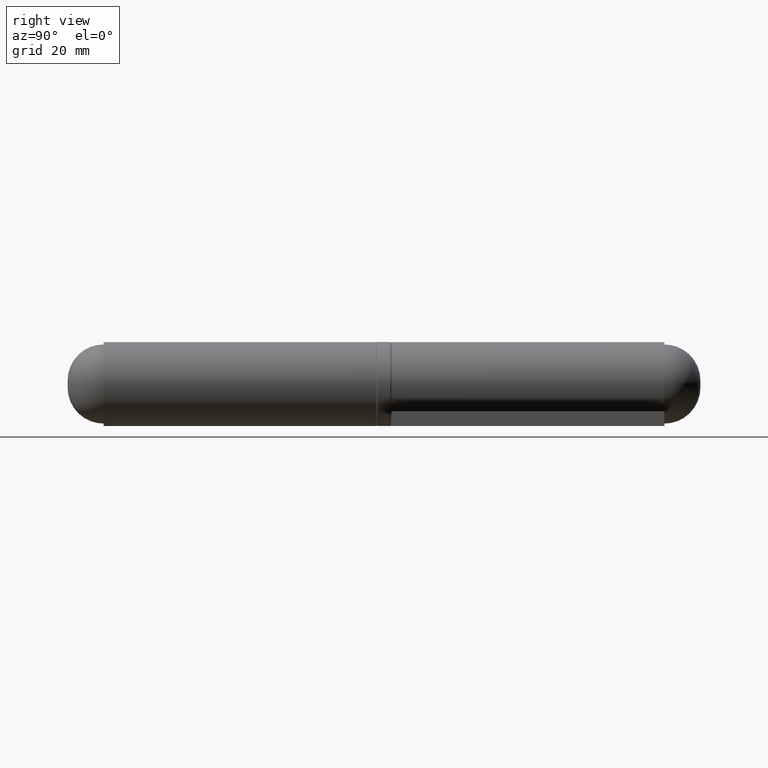
[diagram: clean part render]
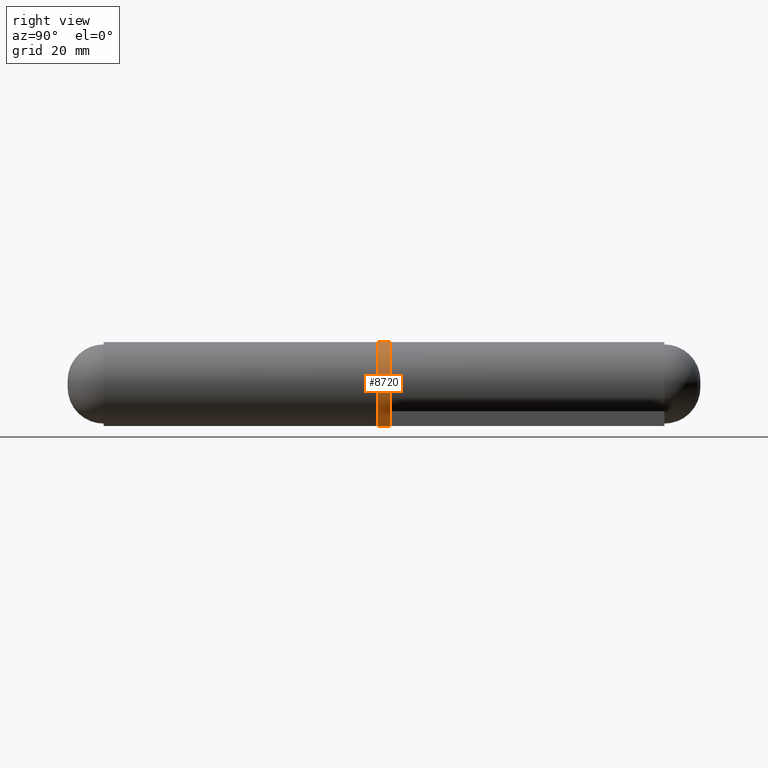
[diagram: same view with one face highlighted and labeled with its STEP entity id]
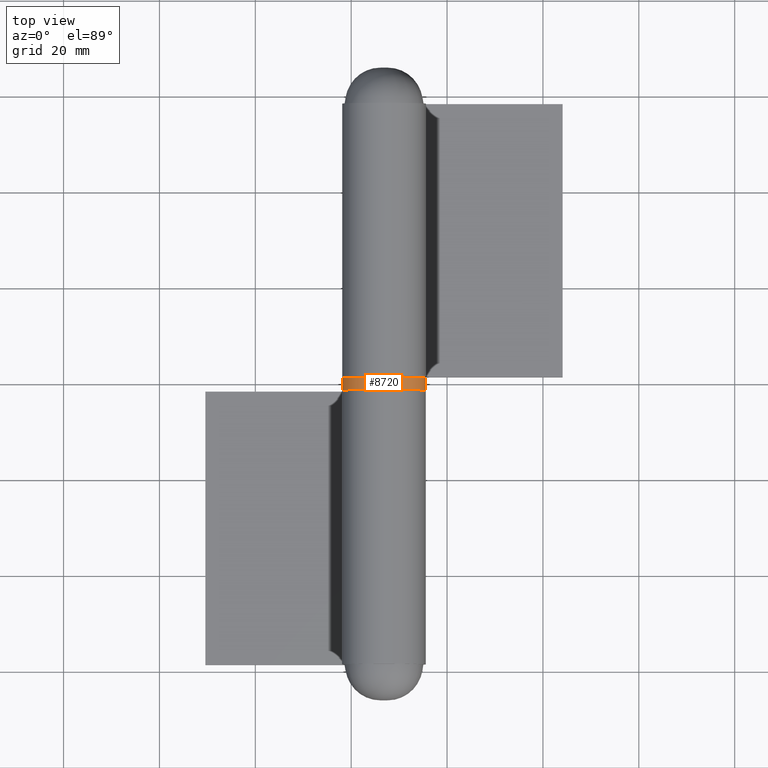
[diagram: same view with one face highlighted and labeled with its STEP entity id]
A machine part, right view. The second image highlights one B-rep face of the part: STEP entity #8720.
A second angle (top view) of the same face is appended — the face is thin or edge-on in the first view.
In plain terms, the highlighted cylindrical surface (bore or boss wall) has radius 8.75 mm, axis along (0, 1, 0).
Its self-contained STEP definition (entity closure, byte-faithful):
#1029 = DIRECTION ( 'NONE',  ( 0.000000000000000000, 0.000000000000000000, 1.000000000000000000 ) ) ;
#2009 = CARTESIAN_POINT ( 'NONE',  ( 0.000000000000000000, -28.69999999999999929, 0.000000000000000000 ) ) ;
#2403 = AXIS2_PLACEMENT_3D ( 'NONE', #6748, #5006, #3265 ) ;
#2875 = EDGE_LOOP ( 'NONE', ( #9070 ) ) ;
#3265 = DIRECTION ( 'NONE',  ( 0.000000000000000000, 0.000000000000000000, 1.000000000000000000 ) ) ;
#3623 = CARTESIAN_POINT ( 'NONE',  ( 0.000000000000000000, -31.30000000000000071, 8.750000000000001776 ) ) ;
#3841 = AXIS2_PLACEMENT_3D ( 'NONE', #2009, #11989, #5515 ) ;
#4482 = CIRCLE ( 'NONE', #3841, 8.750000000000001776 ) ;
#4539 = CARTESIAN_POINT ( 'NONE',  ( 0.000000000000000000, -28.69999999999999929, 8.750000000000001776 ) ) ;
#5006 = DIRECTION ( 'NONE',  ( 0.000000000000000000, 1.000000000000000000, 0.000000000000000000 ) ) ;
#5197 = EDGE_LOOP ( 'NONE', ( #10639 ) ) ;
#5430 = EDGE_CURVE ( 'NONE', #10529, #10529, #5778, .T. ) ;
#5515 = DIRECTION ( 'NONE',  ( 0.000000000000000000, 0.000000000000000000, 1.000000000000000000 ) ) ;
#5778 = CIRCLE ( 'NONE', #2403, 8.750000000000001776 ) ;
#6748 = CARTESIAN_POINT ( 'NONE',  ( 0.000000000000000000, -31.30000000000000071, 0.000000000000000000 ) ) ;
#7965 = FACE_OUTER_BOUND ( 'NONE', #2875, .T. ) ;
#8051 = VERTEX_POINT ( 'NONE', #4539 ) ;
#8720 = ADVANCED_FACE ( 'NONE', ( #7965, #11772 ), #10293, .T. ) ;
#9070 = ORIENTED_EDGE ( 'NONE', *, *, #10026, .T. ) ;
#10026 = EDGE_CURVE ( 'NONE', #8051, #8051, #4482, .T. ) ;
#10293 = CYLINDRICAL_SURFACE ( 'NONE', #11541, 8.750000000000001776 ) ;
#10529 = VERTEX_POINT ( 'NONE', #3623 ) ;
#10639 = ORIENTED_EDGE ( 'NONE', *, *, #5430, .T. ) ;
#11277 = DIRECTION ( 'NONE',  ( 0.000000000000000000, 1.000000000000000000, 0.000000000000000000 ) ) ;
#11541 = AXIS2_PLACEMENT_3D ( 'NONE', #11987, #11277, #1029 ) ;
#11772 = FACE_OUTER_BOUND ( 'NONE', #5197, .T. ) ;
#11987 = CARTESIAN_POINT ( 'NONE',  ( 0.000000000000000000, -31.50000000000000000, 0.000000000000000000 ) ) ;
#11989 = DIRECTION ( 'NONE',  ( -0.000000000000000000, -1.000000000000000000, -0.000000000000000000 ) ) ;